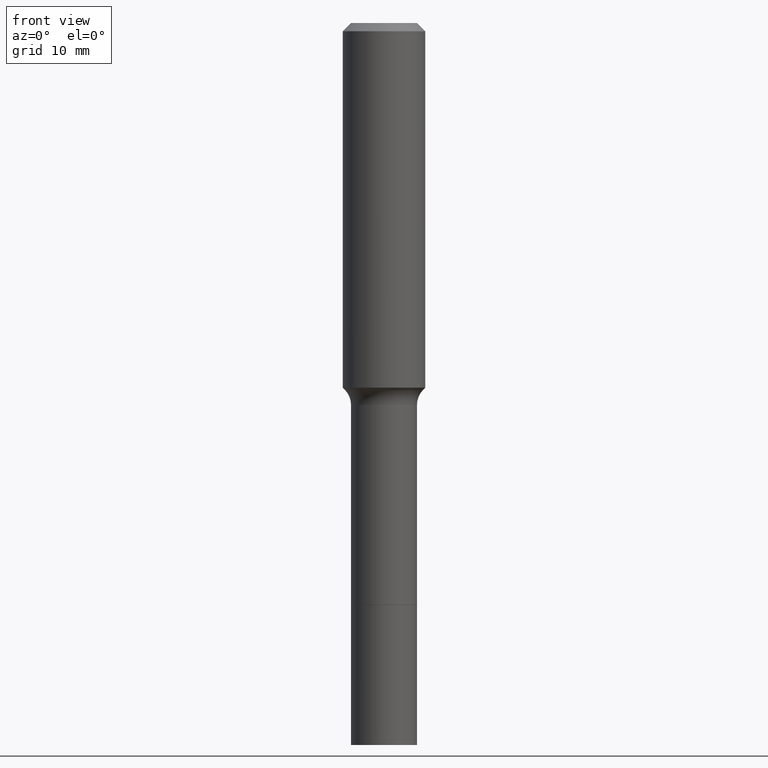
[diagram: clean part render]
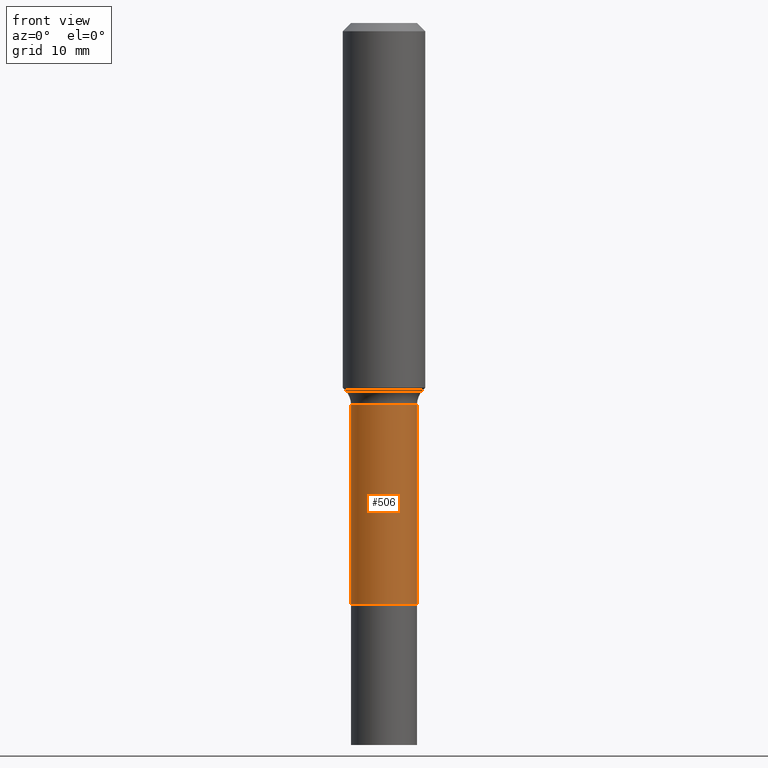
[diagram: same view with one face highlighted and labeled with its STEP entity id]
A machine part, front view. The second image highlights one B-rep face of the part: STEP entity #506.
In plain terms, the highlighted cylindrical surface (edge-blend (fillet) strip) has radius 3.2004 mm, axis along (-0, 0, 1).
Its self-contained STEP definition (entity closure, byte-faithful):
#17 = CARTESIAN_POINT ( 'NONE',  ( 0.1259999999999999454, -8.798532973884691559E-16, 6.143982737502876745E-30 ) ) ;
#27 = CYLINDRICAL_SURFACE ( 'NONE', #162, 0.1259999999999999454 ) ;
#61 = CARTESIAN_POINT ( 'NONE',  ( -0.1260000000000000009, -5.524328316606223241E-15, -2.220399999999999707 ) ) ;
#62 = EDGE_CURVE ( 'NONE', #380, #238, #107, .T. ) ;
#73 = DIRECTION ( 'NONE',  ( 1.000000000000000000, -6.982962677686269077E-15, 0.000000000000000000 ) ) ;
#97 = CARTESIAN_POINT ( 'NONE',  ( 0.1259999999999998899, -5.966592459949047611E-15, -1.456899999999999862 ) ) ;
#107 = LINE ( 'NONE', #17, #345 ) ;
#114 = FACE_OUTER_BOUND ( 'NONE', #126, .T. ) ;
#121 = EDGE_CURVE ( 'NONE', #401, #322, #186, .T. ) ;
#126 = EDGE_LOOP ( 'NONE', ( #129, #241, #423, #429 ) ) ;
#129 = ORIENTED_EDGE ( 'NONE', *, *, #121, .F. ) ;
#141 = CARTESIAN_POINT ( 'NONE',  ( -0.1259999999999999454, 8.952838470577258461E-16, -6.197858213721179206E-30 ) ) ;
#159 = DIRECTION ( 'NONE',  ( 1.000000000000000000, -6.982962677686265922E-15, 4.876176775795935793E-29 ) ) ;
#161 = CARTESIAN_POINT ( 'NONE',  ( 0.000000000000000000, 0.000000000000000000, 0.000000000000000000 ) ) ;
#162 = AXIS2_PLACEMENT_3D ( 'NONE', #161, #427, #159 ) ;
#183 = DIRECTION ( 'NONE',  ( -2.445468806185136877E-29, 3.491481338843145188E-15, 1.000000000000000000 ) ) ;
#185 = EDGE_CURVE ( 'NONE', #322, #238, #224, .T. ) ;
#186 = LINE ( 'NONE', #141, #208 ) ;
#208 = VECTOR ( 'NONE', #406, 39.37007874015748143 ) ;
#224 = CIRCLE ( 'NONE', #508, 0.1259999999999998899 ) ;
#238 = VERTEX_POINT ( 'NONE', #97 ) ;
#241 = ORIENTED_EDGE ( 'NONE', *, *, #409, .T. ) ;
#246 = CARTESIAN_POINT ( 'NONE',  ( -0.1259999999999998899, -5.524328316606224029E-15, -1.456899999999999862 ) ) ;
#247 = AXIS2_PLACEMENT_3D ( 'NONE', #334, #379, #300 ) ;
#300 = DIRECTION ( 'NONE',  ( 1.000000000000000000, -6.982962677686262766E-15, 0.000000000000000000 ) ) ;
#322 = VERTEX_POINT ( 'NONE', #246 ) ;
#334 = CARTESIAN_POINT ( 'NONE',  ( 5.429918937253476724E-29, -7.752485164767320704E-15, -2.220399999999999707 ) ) ;
#345 = VECTOR ( 'NONE', #183, 39.37007874015748143 ) ;
#346 = DIRECTION ( 'NONE',  ( -2.445468806185136597E-29, 3.491481338843145583E-15, 1.000000000000000000 ) ) ;
#379 = DIRECTION ( 'NONE',  ( -2.445468806185136597E-29, 3.491481338843145583E-15, 1.000000000000000000 ) ) ;
#380 = VERTEX_POINT ( 'NONE', #449 ) ;
#401 = VERTEX_POINT ( 'NONE', #61 ) ;
#406 = DIRECTION ( 'NONE',  ( -2.445468806185136877E-29, 3.491481338843145188E-15, 1.000000000000000000 ) ) ;
#409 = EDGE_CURVE ( 'NONE', #401, #380, #442, .T. ) ;
#419 = CARTESIAN_POINT ( 'NONE',  ( 3.562803503731125923E-29, -5.086739162560578258E-15, -1.456899999999999862 ) ) ;
#423 = ORIENTED_EDGE ( 'NONE', *, *, #62, .T. ) ;
#427 = DIRECTION ( 'NONE',  ( -2.445468806185136597E-29, 3.491481338843145583E-15, 1.000000000000000000 ) ) ;
#429 = ORIENTED_EDGE ( 'NONE', *, *, #185, .F. ) ;
#442 = CIRCLE ( 'NONE', #247, 0.1260000000000000009 ) ;
#449 = CARTESIAN_POINT ( 'NONE',  ( 0.1260000000000000009, -8.632338462155790057E-15, -2.220399999999999707 ) ) ;
#506 = ADVANCED_FACE ( 'NONE', ( #114 ), #27, .T. ) ;
#508 = AXIS2_PLACEMENT_3D ( 'NONE', #419, #346, #73 ) ;